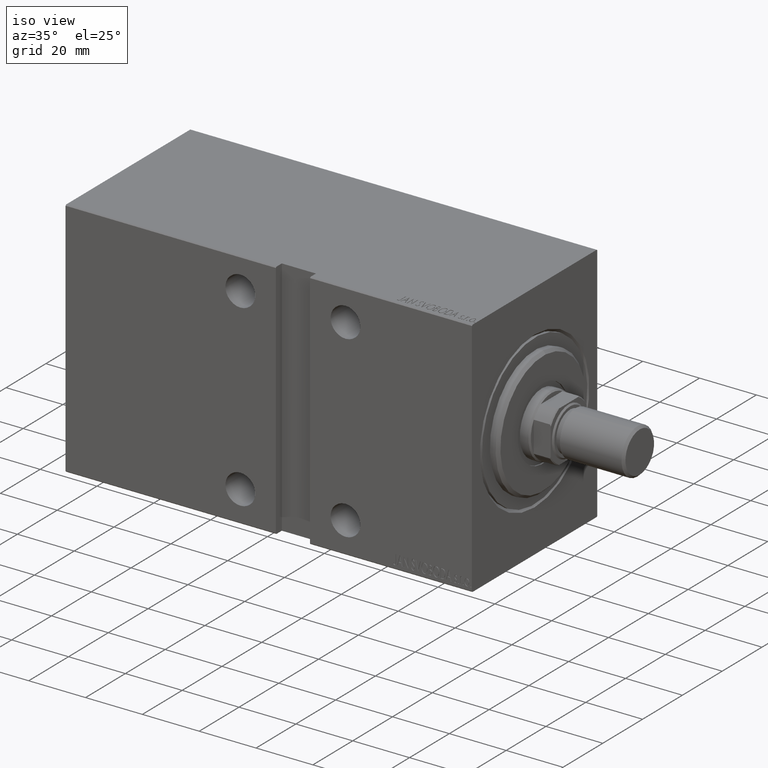
[diagram: clean part render]
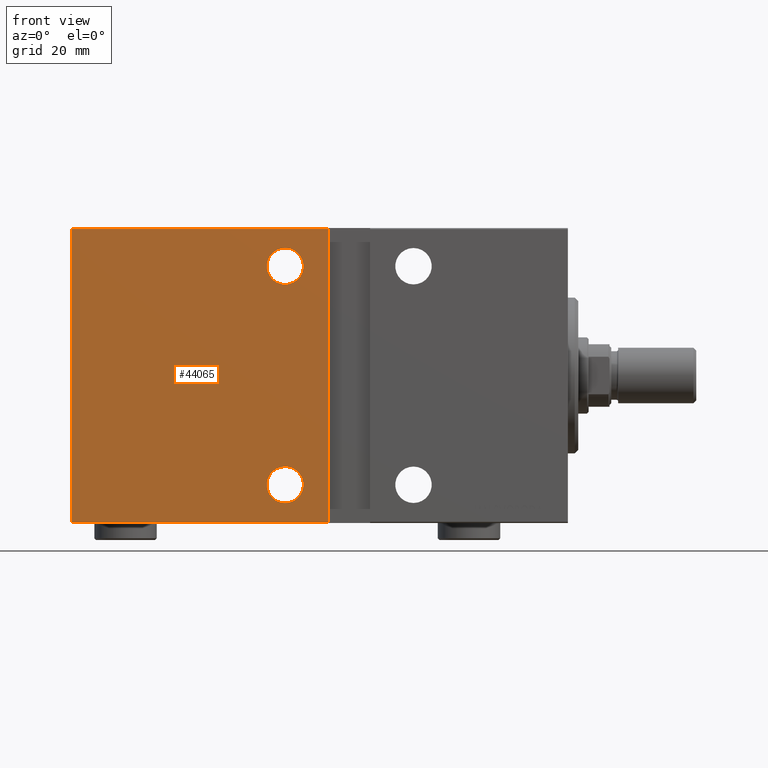
[diagram: tour spotlight — one face highlighted and labeled with its STEP entity id]
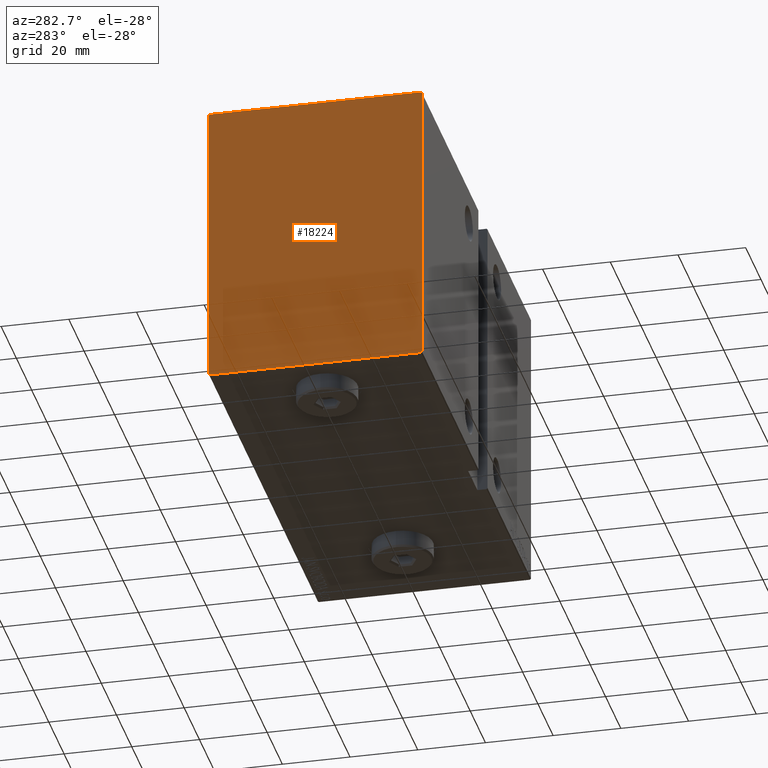
[diagram: tour spotlight — one face highlighted and labeled with its STEP entity id]
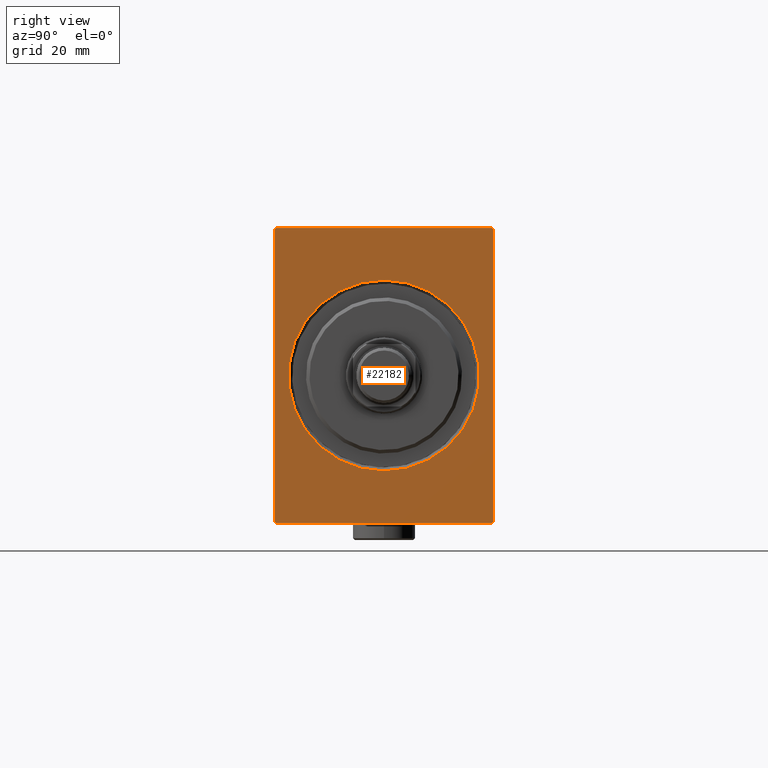
[diagram: tour spotlight — one face highlighted and labeled with its STEP entity id]
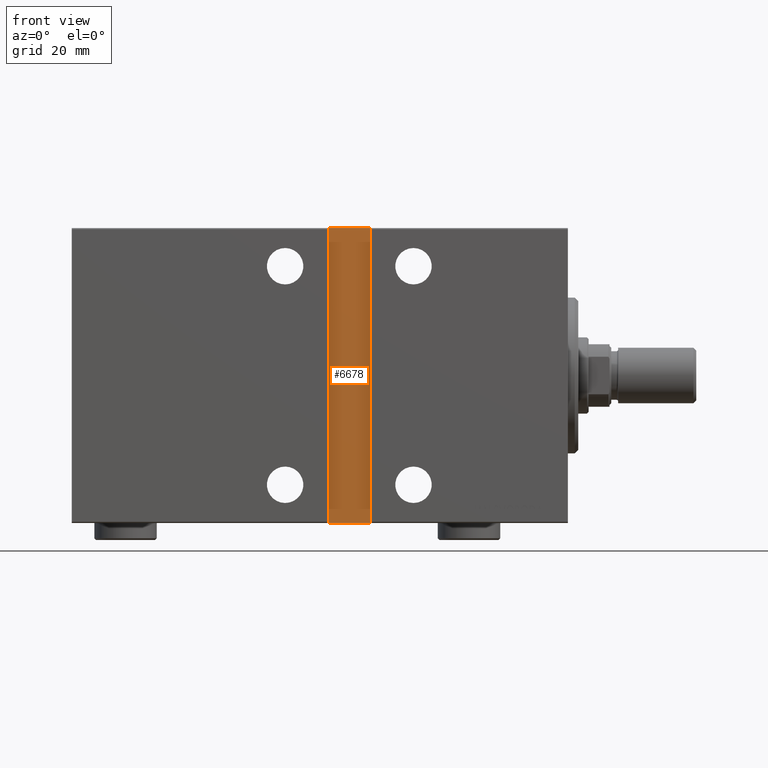
[diagram: tour spotlight — one face highlighted and labeled with its STEP entity id]
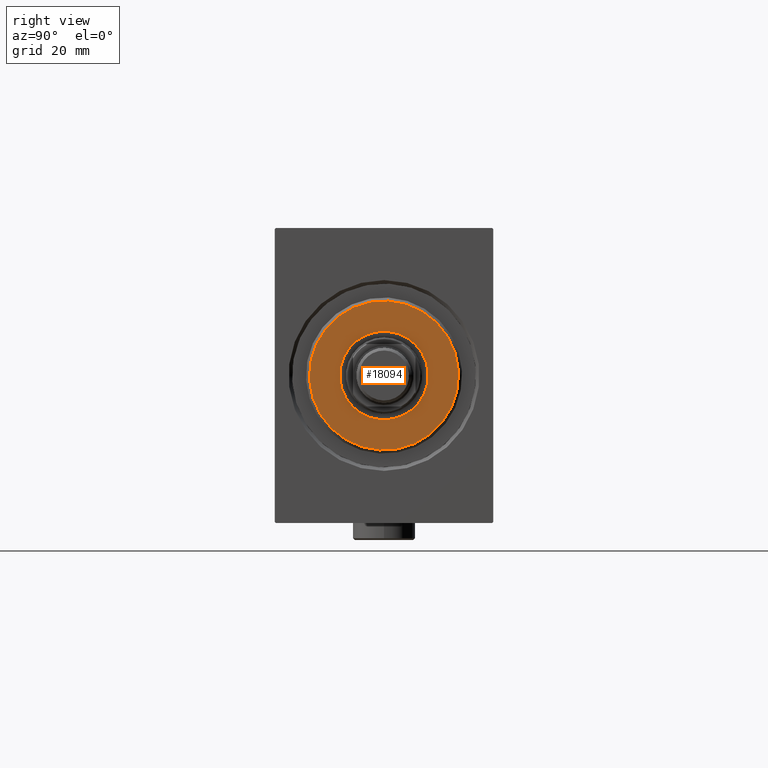
[diagram: tour spotlight — one face highlighted and labeled with its STEP entity id]
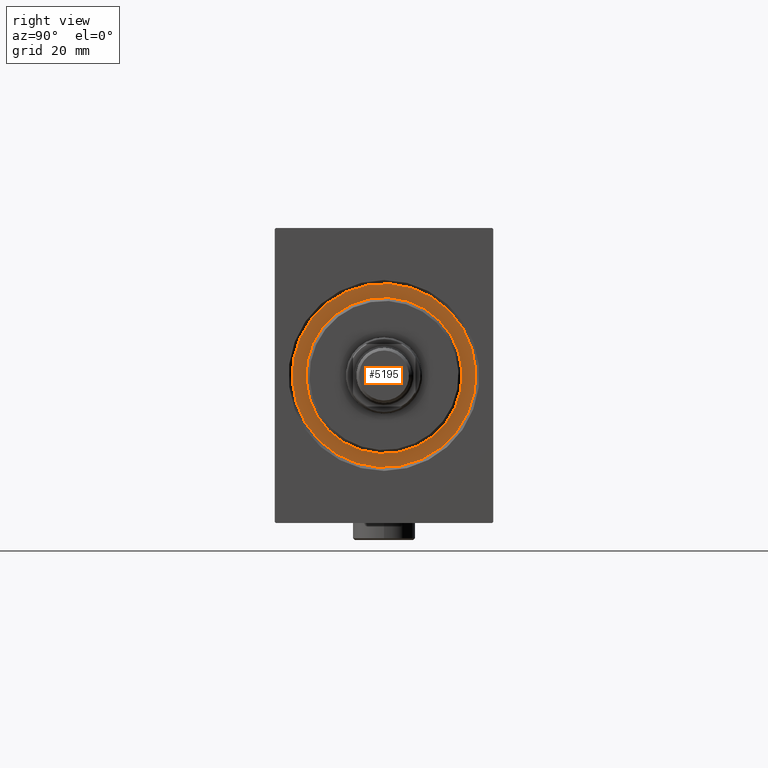
[diagram: tour spotlight — one face highlighted and labeled with its STEP entity id]
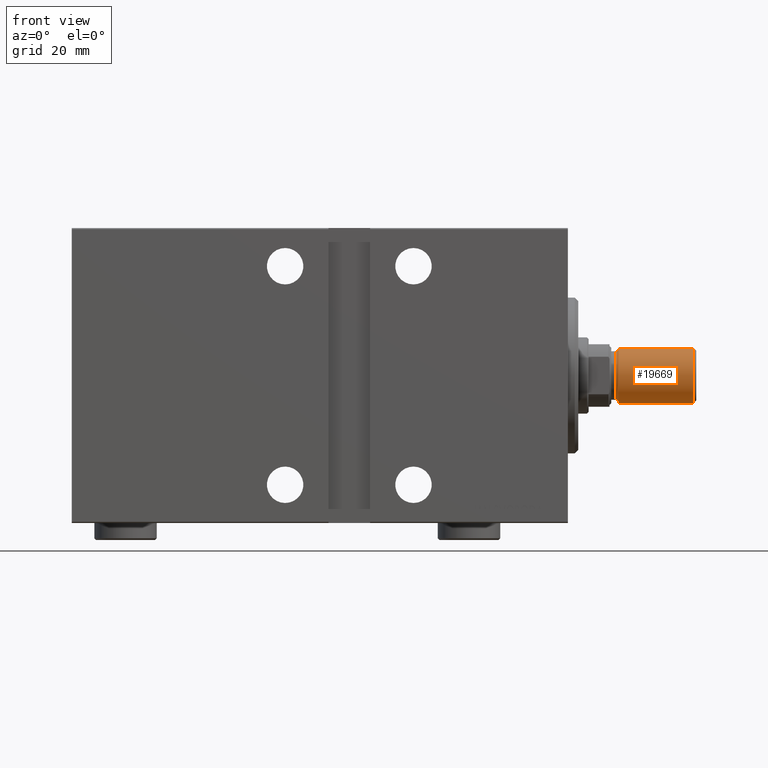
[diagram: tour spotlight — one face highlighted and labeled with its STEP entity id]
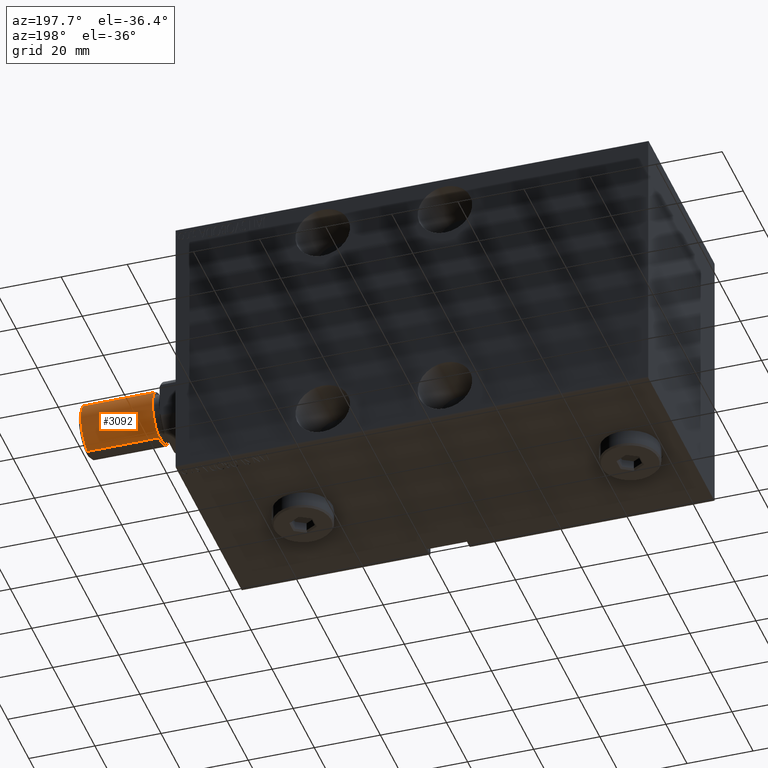
[diagram: tour spotlight — one face highlighted and labeled with its STEP entity id]
A machine part: a face-by-face anatomy tour. The part has 913 B-rep faces; the first image is the clean iso view, then the 8 largest visible faces are spotlighted one at a time (largest first), each with its STEP entity span.

Face 1 — front view, entity #44065. In plain terms, the highlighted planar face has unit normal (-0, 1, -0).
Definition (entity closure, byte-faithful):
#796 = CARTESIAN_POINT ( 'NONE',  ( 143.0000000000000000, 31.50000000000000711, -42.50000000000000711 ) ) ;
#1644 = ORIENTED_EDGE ( 'NONE', *, *, #41748, .F. ) ;
#1740 = EDGE_CURVE ( 'NONE', #21860, #10266, #3109, .T. ) ;
#1922 = CARTESIAN_POINT ( 'NONE',  ( 143.0000000000000000, 31.50000000000000000, 42.20000000000004547 ) ) ;
#2389 = FACE_BOUND ( 'NONE', #37384, .T. ) ;
#3020 = LINE ( 'NONE', #43814, #27795 ) ;
#3109 = CIRCLE ( 'NONE', #14557, 5.250000000000004441 ) ;
#4425 = ORIENTED_EDGE ( 'NONE', *, *, #7078, .T. ) ;
#4496 = DIRECTION ( 'NONE',  ( 0.000000000000000000, 1.000000000000000000, 0.000000000000000000 ) ) ;
#4830 = ORIENTED_EDGE ( 'NONE', *, *, #42965, .F. ) ;
#6901 = EDGE_LOOP ( 'NONE', ( #27109, #39203, #4830, #4425 ) ) ;
#6988 = CARTESIAN_POINT ( 'NONE',  ( 81.49999999999998579, 31.50000000000002132, 26.24999999999998224 ) ) ;
#7078 = EDGE_CURVE ( 'NONE', #41312, #42017, #7780, .T. ) ;
#7780 = LINE ( 'NONE', #30666, #33851 ) ;
#9322 = VERTEX_POINT ( 'NONE', #6988 ) ;
#9768 = DIRECTION ( 'NONE',  ( 0.000000000000000000, 8.163404592832031500E-17, -1.000000000000000000 ) ) ;
#10266 = VERTEX_POINT ( 'NONE', #29512 ) ;
#11217 = LINE ( 'NONE', #40637, #13502 ) ;
#11219 = ORIENTED_EDGE ( 'NONE', *, *, #25376, .F. ) ;
#11749 = VERTEX_POINT ( 'NONE', #44000 ) ;
#11971 = CARTESIAN_POINT ( 'NONE',  ( 81.49999999999998579, 31.50000000000002132, 36.74999999999999289 ) ) ;
#12896 = DIRECTION ( 'NONE',  ( 0.000000000000000000, 1.000000000000000000, 0.000000000000000000 ) ) ;
#13107 = DIRECTION ( 'NONE',  ( -1.632680918566406300E-16, 0.000000000000000000, -1.000000000000000000 ) ) ;
#13354 = FACE_OUTER_BOUND ( 'NONE', #6901, .T. ) ;
#13502 = VECTOR ( 'NONE', #24078, 1000.000000000000000 ) ;
#13956 = CARTESIAN_POINT ( 'NONE',  ( 81.49999999999998579, 31.50000000000002132, -26.25000000000001066 ) ) ;
#14557 = AXIS2_PLACEMENT_3D ( 'NONE', #28313, #38598, #24955 ) ;
#16937 = CARTESIAN_POINT ( 'NONE',  ( 143.0000000000000000, 31.50000000000000711, -42.50000000000000711 ) ) ;
#17548 = VERTEX_POINT ( 'NONE', #32523 ) ;
#17957 = CARTESIAN_POINT ( 'NONE',  ( 69.00000000000001421, 31.50000000000000000, 42.20000000000004547 ) ) ;
#18504 = CIRCLE ( 'NONE', #39948, 5.250000000000004441 ) ;
#18967 = DIRECTION ( 'NONE',  ( 0.000000000000000000, 0.000000000000000000, 1.000000000000000000 ) ) ;
#20696 = ORIENTED_EDGE ( 'NONE', *, *, #21049, .F. ) ;
#21049 = EDGE_CURVE ( 'NONE', #10266, #21860, #18504, .T. ) ;
#21053 = EDGE_CURVE ( 'NONE', #11749, #17548, #11217, .T. ) ;
#21860 = VERTEX_POINT ( 'NONE', #13956 ) ;
#22074 = AXIS2_PLACEMENT_3D ( 'NONE', #30850, #34209, #24359 ) ;
#24078 = DIRECTION ( 'NONE',  ( -1.000000000000000000, 0.000000000000000000, 0.000000000000000000 ) ) ;
#24350 = DIRECTION ( 'NONE',  ( 0.000000000000000000, -8.163404592832031500E-17, 1.000000000000000000 ) ) ;
#24359 = DIRECTION ( 'NONE',  ( 0.000000000000000000, 0.000000000000000000, 1.000000000000000000 ) ) ;
#24955 = DIRECTION ( 'NONE',  ( 0.000000000000000000, 0.000000000000000000, 1.000000000000000000 ) ) ;
#25376 = EDGE_CURVE ( 'NONE', #9322, #33835, #39977, .T. ) ;
#26147 = CARTESIAN_POINT ( 'NONE',  ( 81.49999999999998579, 31.50000000000002132, 31.49999999999998579 ) ) ;
#26597 = PLANE ( 'NONE',  #39868 ) ;
#26660 = EDGE_LOOP ( 'NONE', ( #31688, #20696 ) ) ;
#27035 = DIRECTION ( 'NONE',  ( 0.000000000000000000, -1.000000000000000000, -8.163404592832031500E-17 ) ) ;
#27109 = ORIENTED_EDGE ( 'NONE', *, *, #36968, .F. ) ;
#27795 = VECTOR ( 'NONE', #13107, 1000.000000000000000 ) ;
#27933 = LINE ( 'NONE', #796, #31595 ) ;
#28313 = CARTESIAN_POINT ( 'NONE',  ( 81.49999999999998579, 31.50000000000002132, -31.50000000000001421 ) ) ;
#29512 = CARTESIAN_POINT ( 'NONE',  ( 81.49999999999998579, 31.50000000000002132, -36.75000000000002132 ) ) ;
#30666 = CARTESIAN_POINT ( 'NONE',  ( 143.0000000000000000, 31.50000000000000000, 42.20000000000004547 ) ) ;
#30791 = DIRECTION ( 'NONE',  ( 0.000000000000000000, 0.000000000000000000, 1.000000000000000000 ) ) ;
#30850 = CARTESIAN_POINT ( 'NONE',  ( 81.49999999999998579, 31.50000000000002132, 31.49999999999998579 ) ) ;
#31595 = VECTOR ( 'NONE', #24350, 1000.000000000000000 ) ;
#31688 = ORIENTED_EDGE ( 'NONE', *, *, #1740, .F. ) ;
#32523 = CARTESIAN_POINT ( 'NONE',  ( 69.00000000000000000, 31.50000000000000000, -42.20000000000004547 ) ) ;
#33315 = FACE_BOUND ( 'NONE', #26660, .T. ) ;
#33835 = VERTEX_POINT ( 'NONE', #11971 ) ;
#33851 = VECTOR ( 'NONE', #44332, 1000.000000000000000 ) ;
#34209 = DIRECTION ( 'NONE',  ( 0.000000000000000000, 1.000000000000000000, 0.000000000000000000 ) ) ;
#34992 = AXIS2_PLACEMENT_3D ( 'NONE', #26147, #12896, #18967 ) ;
#36968 = EDGE_CURVE ( 'NONE', #11749, #42017, #27933, .T. ) ;
#37384 = EDGE_LOOP ( 'NONE', ( #1644, #11219 ) ) ;
#38598 = DIRECTION ( 'NONE',  ( 0.000000000000000000, 1.000000000000000000, 0.000000000000000000 ) ) ;
#39203 = ORIENTED_EDGE ( 'NONE', *, *, #21053, .T. ) ;
#39868 = AXIS2_PLACEMENT_3D ( 'NONE', #16937, #27035, #9768 ) ;
#39948 = AXIS2_PLACEMENT_3D ( 'NONE', #41089, #4496, #30791 ) ;
#39977 = CIRCLE ( 'NONE', #34992, 5.250000000000004441 ) ;
#40637 = CARTESIAN_POINT ( 'NONE',  ( 143.0000000000000000, 31.50000000000000711, -42.20000000000004547 ) ) ;
#41089 = CARTESIAN_POINT ( 'NONE',  ( 81.49999999999998579, 31.50000000000002132, -31.50000000000001421 ) ) ;
#41312 = VERTEX_POINT ( 'NONE', #17957 ) ;
#41377 = CIRCLE ( 'NONE', #22074, 5.250000000000004441 ) ;
#41748 = EDGE_CURVE ( 'NONE', #33835, #9322, #41377, .T. ) ;
#42017 = VERTEX_POINT ( 'NONE', #1922 ) ;
#42965 = EDGE_CURVE ( 'NONE', #41312, #17548, #3020, .T. ) ;
#43814 = CARTESIAN_POINT ( 'NONE',  ( 69.00000000000001421, 31.50000000000000000, 42.50000000000000711 ) ) ;
#44000 = CARTESIAN_POINT ( 'NONE',  ( 143.0000000000000000, 31.50000000000000711, -42.20000000000004547 ) ) ;
#44065 = ADVANCED_FACE ( 'NONE', ( #33315, #2389, #13354 ), #26597, .F. ) ;
#44332 = DIRECTION ( 'NONE',  ( 1.000000000000000000, 0.000000000000000000, 0.000000000000000000 ) ) ;

Face 2 — auxiliary view, entity #18224. In plain terms, the highlighted planar face has unit normal (-1, -0, 0).
Definition (entity closure, byte-faithful):
#47 = DIRECTION ( 'NONE',  ( -0.000000000000000000, 0.7071067811865474617, 0.7071067811865474617 ) ) ;
#796 = CARTESIAN_POINT ( 'NONE',  ( 143.0000000000000000, 31.50000000000000711, -42.50000000000000711 ) ) ;
#1539 = EDGE_CURVE ( 'NONE', #4230, #5914, #16228, .T. ) ;
#1547 = DIRECTION ( 'NONE',  ( -0.000000000000000000, 0.7071067811865802133, -0.7071067811865149322 ) ) ;
#1922 = CARTESIAN_POINT ( 'NONE',  ( 143.0000000000000000, 31.50000000000000000, 42.20000000000004547 ) ) ;
#2583 = PLANE ( 'NONE',  #3387 ) ;
#3186 = CARTESIAN_POINT ( 'NONE',  ( 143.0000000000000000, 36.85000000000002274, -36.85000000000002274 ) ) ;
#3234 = VECTOR ( 'NONE', #13108, 1000.000000000000000 ) ;
#3387 = AXIS2_PLACEMENT_3D ( 'NONE', #9313, #37071, #26577 ) ;
#3515 = DIRECTION ( 'NONE',  ( 0.000000000000000000, 1.000000000000000000, 0.000000000000000000 ) ) ;
#3990 = ORIENTED_EDGE ( 'NONE', *, *, #1539, .T. ) ;
#4230 = VERTEX_POINT ( 'NONE', #23606 ) ;
#5550 = VERTEX_POINT ( 'NONE', #32381 ) ;
#5725 = EDGE_CURVE ( 'NONE', #18124, #4230, #6592, .T. ) ;
#5914 = VERTEX_POINT ( 'NONE', #20672 ) ;
#6592 = LINE ( 'NONE', #14595, #3234 ) ;
#6863 = CARTESIAN_POINT ( 'NONE',  ( 143.0000000000000000, 31.20000000000003482, 42.50000000000000711 ) ) ;
#7596 = CARTESIAN_POINT ( 'NONE',  ( 143.0000000000000000, -36.84999999999855902, -36.85000000000196962 ) ) ;
#7821 = LINE ( 'NONE', #7596, #43506 ) ;
#8210 = LINE ( 'NONE', #21895, #26349 ) ;
#8897 = EDGE_LOOP ( 'NONE', ( #20826, #15591, #31796, #21702, #29429, #18616, #3990, #10219 ) ) ;
#9313 = CARTESIAN_POINT ( 'NONE',  ( 143.0000000000000000, 0.000000000000000000, 0.000000000000000000 ) ) ;
#10219 = ORIENTED_EDGE ( 'NONE', *, *, #23289, .T. ) ;
#10442 = CARTESIAN_POINT ( 'NONE',  ( 143.0000000000000000, -31.49999999999999289, -42.50000000000000711 ) ) ;
#11749 = VERTEX_POINT ( 'NONE', #44000 ) ;
#13108 = DIRECTION ( 'NONE',  ( 0.000000000000000000, -0.7071067811865066055, -0.7071067811865884289 ) ) ;
#13473 = VECTOR ( 'NONE', #27317, 1000.000000000000114 ) ;
#13544 = VERTEX_POINT ( 'NONE', #43590 ) ;
#14071 = LINE ( 'NONE', #24173, #13473 ) ;
#14595 = CARTESIAN_POINT ( 'NONE',  ( 143.0000000000000000, -36.85000000000182752, 36.84999999999756426 ) ) ;
#15591 = ORIENTED_EDGE ( 'NONE', *, *, #43194, .T. ) ;
#16228 = LINE ( 'NONE', #39756, #42496 ) ;
#17141 = VERTEX_POINT ( 'NONE', #6863 ) ;
#18124 = VERTEX_POINT ( 'NONE', #28616 ) ;
#18224 = ADVANCED_FACE ( 'NONE', ( #23430 ), #2583, .T. ) ;
#18536 = DIRECTION ( 'NONE',  ( 0.000000000000000000, -1.000000000000000000, 0.000000000000000000 ) ) ;
#18616 = ORIENTED_EDGE ( 'NONE', *, *, #5725, .T. ) ;
#19544 = EDGE_CURVE ( 'NONE', #42017, #17141, #14071, .T. ) ;
#20672 = CARTESIAN_POINT ( 'NONE',  ( 143.0000000000000000, -31.49999999999999289, -42.20000000000004547 ) ) ;
#20826 = ORIENTED_EDGE ( 'NONE', *, *, #41774, .T. ) ;
#21702 = ORIENTED_EDGE ( 'NONE', *, *, #19544, .T. ) ;
#21895 = CARTESIAN_POINT ( 'NONE',  ( 143.0000000000000000, 31.50000000000000000, 42.50000000000000711 ) ) ;
#22719 = VECTOR ( 'NONE', #47, 1000.000000000000114 ) ;
#23289 = EDGE_CURVE ( 'NONE', #5914, #13544, #7821, .T. ) ;
#23430 = FACE_OUTER_BOUND ( 'NONE', #8897, .T. ) ;
#23483 = VECTOR ( 'NONE', #3515, 1000.000000000000000 ) ;
#23606 = CARTESIAN_POINT ( 'NONE',  ( 143.0000000000000000, -31.49999999999999289, 42.20000000000001705 ) ) ;
#23733 = EDGE_CURVE ( 'NONE', #17141, #18124, #8210, .T. ) ;
#24173 = CARTESIAN_POINT ( 'NONE',  ( 143.0000000000000000, 36.85000000000001563, 36.85000000000001563 ) ) ;
#24350 = DIRECTION ( 'NONE',  ( 0.000000000000000000, -8.163404592832031500E-17, 1.000000000000000000 ) ) ;
#26349 = VECTOR ( 'NONE', #18536, 1000.000000000000000 ) ;
#26577 = DIRECTION ( 'NONE',  ( 0.000000000000000000, 0.000000000000000000, -1.000000000000000000 ) ) ;
#27317 = DIRECTION ( 'NONE',  ( -0.000000000000000000, -0.7071067811865474617, 0.7071067811865474617 ) ) ;
#27933 = LINE ( 'NONE', #796, #31595 ) ;
#28616 = CARTESIAN_POINT ( 'NONE',  ( 143.0000000000000000, -31.20000000000003482, 42.50000000000000711 ) ) ;
#29429 = ORIENTED_EDGE ( 'NONE', *, *, #23733, .T. ) ;
#31595 = VECTOR ( 'NONE', #24350, 1000.000000000000000 ) ;
#31796 = ORIENTED_EDGE ( 'NONE', *, *, #36968, .T. ) ;
#32381 = CARTESIAN_POINT ( 'NONE',  ( 143.0000000000000000, 31.20000000000004192, -42.50000000000000711 ) ) ;
#32834 = DIRECTION ( 'NONE',  ( 0.000000000000000000, 0.000000000000000000, -1.000000000000000000 ) ) ;
#34431 = LINE ( 'NONE', #10442, #23483 ) ;
#36968 = EDGE_CURVE ( 'NONE', #11749, #42017, #27933, .T. ) ;
#37071 = DIRECTION ( 'NONE',  ( 1.000000000000000000, 0.000000000000000000, 0.000000000000000000 ) ) ;
#39756 = CARTESIAN_POINT ( 'NONE',  ( 143.0000000000000000, -31.49999999999999289, 42.50000000000000711 ) ) ;
#41774 = EDGE_CURVE ( 'NONE', #13544, #5550, #34431, .T. ) ;
#42017 = VERTEX_POINT ( 'NONE', #1922 ) ;
#42496 = VECTOR ( 'NONE', #32834, 1000.000000000000000 ) ;
#43194 = EDGE_CURVE ( 'NONE', #5550, #11749, #43758, .T. ) ;
#43506 = VECTOR ( 'NONE', #1547, 999.9999999999998863 ) ;
#43590 = CARTESIAN_POINT ( 'NONE',  ( 143.0000000000000000, -31.19999999999999929, -42.50000000000000711 ) ) ;
#43758 = LINE ( 'NONE', #3186, #22719 ) ;
#44000 = CARTESIAN_POINT ( 'NONE',  ( 143.0000000000000000, 31.50000000000000711, -42.20000000000004547 ) ) ;

Face 3 — right view, entity #22182. In plain terms, the highlighted planar face has unit normal (-1, -0, 0).
Definition (entity closure, byte-faithful):
#157 = LINE ( 'NONE', #37787, #36309 ) ;
#322 = DIRECTION ( 'NONE',  ( 1.000000000000000000, 0.000000000000000000, 0.000000000000000000 ) ) ;
#637 = AXIS2_PLACEMENT_3D ( 'NONE', #3685, #322, #7040 ) ;
#740 = ORIENTED_EDGE ( 'NONE', *, *, #27408, .T. ) ;
#1130 = DIRECTION ( 'NONE',  ( -0.000000000000000000, -0.7071067811865802133, 0.7071067811865149322 ) ) ;
#1934 = EDGE_CURVE ( 'NONE', #42533, #32780, #35411, .T. ) ;
#3502 = LINE ( 'NONE', #20523, #6100 ) ;
#3685 = CARTESIAN_POINT ( 'NONE',  ( 0.000000000000000000, 0.000000000000000000, 0.000000000000000000 ) ) ;
#4493 = CARTESIAN_POINT ( 'NONE',  ( 0.000000000000000000, -31.19999999999999929, -42.50000000000000711 ) ) ;
#4806 = EDGE_CURVE ( 'NONE', #12014, #15877, #14887, .T. ) ;
#5229 = EDGE_CURVE ( 'NONE', #13359, #23847, #37540, .T. ) ;
#6100 = VECTOR ( 'NONE', #27270, 1000.000000000000000 ) ;
#6368 = ORIENTED_EDGE ( 'NONE', *, *, #4806, .F. ) ;
#7040 = DIRECTION ( 'NONE',  ( 0.000000000000000000, 0.000000000000000000, -1.000000000000000000 ) ) ;
#7211 = EDGE_CURVE ( 'NONE', #10547, #35244, #29517, .T. ) ;
#7289 = DIRECTION ( 'NONE',  ( -0.000000000000000000, 0.7071067811865066055, 0.7071067811865884289 ) ) ;
#8092 = EDGE_CURVE ( 'NONE', #24355, #35244, #27696, .T. ) ;
#9686 = DIRECTION ( 'NONE',  ( 1.000000000000000000, 0.000000000000000000, 0.000000000000000000 ) ) ;
#10406 = CARTESIAN_POINT ( 'NONE',  ( 0.000000000000000000, 3.367778697655224463E-15, -27.50000000000002487 ) ) ;
#10547 = VERTEX_POINT ( 'NONE', #38303 ) ;
#11196 = DIRECTION ( 'NONE',  ( 0.000000000000000000, 0.000000000000000000, -1.000000000000000000 ) ) ;
#12014 = VERTEX_POINT ( 'NONE', #18563 ) ;
#12282 = EDGE_CURVE ( 'NONE', #24355, #32780, #3502, .T. ) ;
#13359 = VERTEX_POINT ( 'NONE', #38274 ) ;
#13586 = CARTESIAN_POINT ( 'NONE',  ( 0.000000000000000000, -31.49999999999999289, 42.20000000000001705 ) ) ;
#13935 = DIRECTION ( 'NONE',  ( 0.000000000000000000, 0.000000000000000000, -1.000000000000000000 ) ) ;
#14887 = LINE ( 'NONE', #35276, #16811 ) ;
#15507 = DIRECTION ( 'NONE',  ( -0.000000000000000000, 0.7071067811865474617, -0.7071067811865474617 ) ) ;
#15744 = VERTEX_POINT ( 'NONE', #44132 ) ;
#15877 = VERTEX_POINT ( 'NONE', #22606 ) ;
#16418 = FACE_BOUND ( 'NONE', #38618, .T. ) ;
#16500 = CARTESIAN_POINT ( 'NONE',  ( 0.000000000000000000, -31.49999999999999289, -42.20000000000004547 ) ) ;
#16811 = VECTOR ( 'NONE', #31925, 1000.000000000000000 ) ;
#17134 = EDGE_LOOP ( 'NONE', ( #41101, #21138, #6368, #740, #39261, #23837, #21237, #28319 ) ) ;
#17197 = DIRECTION ( 'NONE',  ( 0.000000000000000000, 1.000000000000000000, 0.000000000000000000 ) ) ;
#18045 = EDGE_CURVE ( 'NONE', #42533, #15744, #157, .T. ) ;
#18563 = CARTESIAN_POINT ( 'NONE',  ( 0.000000000000000000, 31.50000000000000711, -42.20000000000004547 ) ) ;
#20246 = VECTOR ( 'NONE', #43395, 1000.000000000000000 ) ;
#20523 = CARTESIAN_POINT ( 'NONE',  ( 0.000000000000000000, -31.49999999999999289, 42.50000000000000711 ) ) ;
#21138 = ORIENTED_EDGE ( 'NONE', *, *, #31897, .T. ) ;
#21237 = ORIENTED_EDGE ( 'NONE', *, *, #12282, .F. ) ;
#21514 = CARTESIAN_POINT ( 'NONE',  ( 0.000000000000000000, 0.000000000000000000, 0.000000000000000000 ) ) ;
#21735 = DIRECTION ( 'NONE',  ( 1.000000000000000000, 0.000000000000000000, 0.000000000000000000 ) ) ;
#22123 = CIRCLE ( 'NONE', #637, 27.50000000000002487 ) ;
#22182 = ADVANCED_FACE ( 'NONE', ( #16418, #36579 ), #33234, .F. ) ;
#22606 = CARTESIAN_POINT ( 'NONE',  ( 0.000000000000000000, 31.50000000000000000, 42.20000000000004547 ) ) ;
#23837 = ORIENTED_EDGE ( 'NONE', *, *, #1934, .T. ) ;
#23847 = VERTEX_POINT ( 'NONE', #10406 ) ;
#23986 = AXIS2_PLACEMENT_3D ( 'NONE', #21514, #21735, #11196 ) ;
#24355 = VERTEX_POINT ( 'NONE', #35664 ) ;
#25335 = LINE ( 'NONE', #42350, #42909 ) ;
#25379 = CARTESIAN_POINT ( 'NONE',  ( 0.000000000000000000, 31.20000000000003482, 42.50000000000000711 ) ) ;
#25444 = EDGE_CURVE ( 'NONE', #23847, #13359, #22123, .T. ) ;
#26075 = VECTOR ( 'NONE', #7289, 1000.000000000000000 ) ;
#26197 = CARTESIAN_POINT ( 'NONE',  ( 0.000000000000000000, -31.19999999999999929, -42.50000000000000711 ) ) ;
#27270 = DIRECTION ( 'NONE',  ( 0.000000000000000000, 0.000000000000000000, -1.000000000000000000 ) ) ;
#27408 = EDGE_CURVE ( 'NONE', #12014, #15744, #25335, .T. ) ;
#27696 = LINE ( 'NONE', #13586, #26075 ) ;
#28319 = ORIENTED_EDGE ( 'NONE', *, *, #8092, .T. ) ;
#29517 = LINE ( 'NONE', #36448, #20246 ) ;
#31897 = EDGE_CURVE ( 'NONE', #10547, #15877, #38355, .T. ) ;
#31925 = DIRECTION ( 'NONE',  ( 0.000000000000000000, -8.163404592832031500E-17, 1.000000000000000000 ) ) ;
#32780 = VERTEX_POINT ( 'NONE', #16500 ) ;
#33234 = PLANE ( 'NONE',  #34158 ) ;
#33913 = VECTOR ( 'NONE', #1130, 999.9999999999998863 ) ;
#34158 = AXIS2_PLACEMENT_3D ( 'NONE', #36794, #9686, #13935 ) ;
#35244 = VERTEX_POINT ( 'NONE', #38413 ) ;
#35276 = CARTESIAN_POINT ( 'NONE',  ( 0.000000000000000000, 31.50000000000000711, -42.50000000000000711 ) ) ;
#35402 = ORIENTED_EDGE ( 'NONE', *, *, #25444, .T. ) ;
#35411 = LINE ( 'NONE', #4493, #33913 ) ;
#35622 = DIRECTION ( 'NONE',  ( 0.000000000000000000, -0.7071067811865474617, -0.7071067811865474617 ) ) ;
#35664 = CARTESIAN_POINT ( 'NONE',  ( 0.000000000000000000, -31.49999999999999289, 42.20000000000001705 ) ) ;
#36309 = VECTOR ( 'NONE', #17197, 1000.000000000000000 ) ;
#36448 = CARTESIAN_POINT ( 'NONE',  ( 0.000000000000000000, 31.50000000000000000, 42.50000000000000711 ) ) ;
#36579 = FACE_OUTER_BOUND ( 'NONE', #17134, .T. ) ;
#36794 = CARTESIAN_POINT ( 'NONE',  ( 0.000000000000000000, 0.000000000000000000, 0.000000000000000000 ) ) ;
#37540 = CIRCLE ( 'NONE', #23986, 27.50000000000002487 ) ;
#37787 = CARTESIAN_POINT ( 'NONE',  ( 0.000000000000000000, -31.49999999999999289, -42.50000000000000711 ) ) ;
#38274 = CARTESIAN_POINT ( 'NONE',  ( 0.000000000000000000, 0.000000000000000000, 27.50000000000002487 ) ) ;
#38303 = CARTESIAN_POINT ( 'NONE',  ( 0.000000000000000000, 31.20000000000003482, 42.50000000000000711 ) ) ;
#38355 = LINE ( 'NONE', #25379, #40129 ) ;
#38413 = CARTESIAN_POINT ( 'NONE',  ( 0.000000000000000000, -31.20000000000003482, 42.50000000000000711 ) ) ;
#38618 = EDGE_LOOP ( 'NONE', ( #41917, #35402 ) ) ;
#39261 = ORIENTED_EDGE ( 'NONE', *, *, #18045, .F. ) ;
#40129 = VECTOR ( 'NONE', #15507, 1000.000000000000114 ) ;
#41101 = ORIENTED_EDGE ( 'NONE', *, *, #7211, .F. ) ;
#41917 = ORIENTED_EDGE ( 'NONE', *, *, #5229, .T. ) ;
#42350 = CARTESIAN_POINT ( 'NONE',  ( 0.000000000000000000, 31.50000000000000711, -42.20000000000004547 ) ) ;
#42533 = VERTEX_POINT ( 'NONE', #26197 ) ;
#42909 = VECTOR ( 'NONE', #35622, 1000.000000000000114 ) ;
#43395 = DIRECTION ( 'NONE',  ( 0.000000000000000000, -1.000000000000000000, 0.000000000000000000 ) ) ;
#44132 = CARTESIAN_POINT ( 'NONE',  ( 0.000000000000000000, 31.20000000000004192, -42.50000000000000711 ) ) ;

Face 4 — front view, entity #6678. In plain terms, the highlighted planar face has unit normal (0, -1, -0).
Definition (entity closure, byte-faithful):
#278 = LINE ( 'NONE', #27199, #12529 ) ;
#3251 = CARTESIAN_POINT ( 'NONE',  ( 56.99999999999999289, 28.50000000000000000, -42.50000000000000711 ) ) ;
#3863 = DIRECTION ( 'NONE',  ( 0.000000000000000000, -0.000000000000000000, 1.000000000000000000 ) ) ;
#4376 = DIRECTION ( 'NONE',  ( -1.632680918566406300E-16, 0.000000000000000000, -1.000000000000000000 ) ) ;
#4967 = EDGE_CURVE ( 'NONE', #24793, #19765, #278, .T. ) ;
#6102 = AXIS2_PLACEMENT_3D ( 'NONE', #13955, #41062, #3863 ) ;
#6678 = ADVANCED_FACE ( 'NONE', ( #31204 ), #30984, .T. ) ;
#8402 = ORIENTED_EDGE ( 'NONE', *, *, #4967, .T. ) ;
#10655 = LINE ( 'NONE', #41797, #40046 ) ;
#12529 = VECTOR ( 'NONE', #13289, 1000.000000000000000 ) ;
#13289 = DIRECTION ( 'NONE',  ( 1.000000000000000000, 0.000000000000000000, 0.000000000000000000 ) ) ;
#13955 = CARTESIAN_POINT ( 'NONE',  ( 0.000000000000000000, 28.50000000000000000, 0.000000000000000000 ) ) ;
#16226 = VERTEX_POINT ( 'NONE', #38661 ) ;
#16504 = VECTOR ( 'NONE', #44039, 1000.000000000000000 ) ;
#16706 = LINE ( 'NONE', #43607, #16504 ) ;
#17154 = DIRECTION ( 'NONE',  ( 1.000000000000000000, 0.000000000000000000, 0.000000000000000000 ) ) ;
#19352 = CARTESIAN_POINT ( 'NONE',  ( 57.00000000000000000, 28.50000000000000000, 42.50000000000000711 ) ) ;
#19765 = VERTEX_POINT ( 'NONE', #43569 ) ;
#22259 = ORIENTED_EDGE ( 'NONE', *, *, #30703, .F. ) ;
#22383 = VERTEX_POINT ( 'NONE', #23323 ) ;
#23323 = CARTESIAN_POINT ( 'NONE',  ( 69.00000000000001421, 28.50000000000000355, -42.50000000000000711 ) ) ;
#24793 = VERTEX_POINT ( 'NONE', #19352 ) ;
#27199 = CARTESIAN_POINT ( 'NONE',  ( 57.00000000000000000, 28.50000000000000000, 42.50000000000000711 ) ) ;
#27963 = VECTOR ( 'NONE', #17154, 1000.000000000000000 ) ;
#28106 = EDGE_CURVE ( 'NONE', #19765, #22383, #10655, .T. ) ;
#30156 = LINE ( 'NONE', #3251, #27963 ) ;
#30645 = EDGE_CURVE ( 'NONE', #24793, #16226, #16706, .T. ) ;
#30703 = EDGE_CURVE ( 'NONE', #16226, #22383, #30156, .T. ) ;
#30984 = PLANE ( 'NONE',  #6102 ) ;
#31204 = FACE_OUTER_BOUND ( 'NONE', #40104, .T. ) ;
#34274 = ORIENTED_EDGE ( 'NONE', *, *, #30645, .F. ) ;
#38661 = CARTESIAN_POINT ( 'NONE',  ( 56.99999999999999289, 28.50000000000000000, -42.50000000000000711 ) ) ;
#40046 = VECTOR ( 'NONE', #4376, 1000.000000000000000 ) ;
#40104 = EDGE_LOOP ( 'NONE', ( #22259, #34274, #8402, #43201 ) ) ;
#41062 = DIRECTION ( 'NONE',  ( -0.000000000000000000, 1.000000000000000000, 0.000000000000000000 ) ) ;
#41797 = CARTESIAN_POINT ( 'NONE',  ( 69.00000000000001421, 28.50000000000000000, 42.50000000000000711 ) ) ;
#43201 = ORIENTED_EDGE ( 'NONE', *, *, #28106, .T. ) ;
#43569 = CARTESIAN_POINT ( 'NONE',  ( 69.00000000000001421, 28.50000000000000000, 42.50000000000000711 ) ) ;
#43607 = CARTESIAN_POINT ( 'NONE',  ( 57.00000000000000000, 28.50000000000000000, 42.50000000000000711 ) ) ;
#44039 = DIRECTION ( 'NONE',  ( -8.163404592832031500E-17, 0.000000000000000000, -1.000000000000000000 ) ) ;

Face 5 — right view, entity #18094. In plain terms, the highlighted planar face has unit normal (1, -0, -0).
Definition (entity closure, byte-faithful):
#848 = CIRCLE ( 'NONE', #18756, 12.75000000000000000 ) ;
#2273 = DIRECTION ( 'NONE',  ( 0.000000000000000000, 0.000000000000000000, -1.000000000000000000 ) ) ;
#6198 = VERTEX_POINT ( 'NONE', #16548 ) ;
#6266 = AXIS2_PLACEMENT_3D ( 'NONE', #39560, #25031, #21890 ) ;
#9815 = DIRECTION ( 'NONE',  ( 1.000000000000000000, -0.000000000000000000, 0.000000000000000000 ) ) ;
#10533 = DIRECTION ( 'NONE',  ( 1.000000000000000000, 0.000000000000000000, 0.000000000000000000 ) ) ;
#10861 = EDGE_CURVE ( 'NONE', #43261, #14196, #41841, .T. ) ;
#14196 = VERTEX_POINT ( 'NONE', #32223 ) ;
#14818 = CARTESIAN_POINT ( 'NONE',  ( 3.000000000000000000, 0.000000000000000000, 21.50000000000001066 ) ) ;
#14930 = FACE_OUTER_BOUND ( 'NONE', #23225, .T. ) ;
#14971 = AXIS2_PLACEMENT_3D ( 'NONE', #19313, #32978, #2273 ) ;
#16548 = CARTESIAN_POINT ( 'NONE',  ( 3.000000000000000000, 2.694222958124177993E-15, -21.50000000000001066 ) ) ;
#18094 = ADVANCED_FACE ( 'NONE', ( #14930, #35318 ), #22118, .T. ) ;
#18756 = AXIS2_PLACEMENT_3D ( 'NONE', #31287, #31735, #28379 ) ;
#19313 = CARTESIAN_POINT ( 'NONE',  ( 3.000000000000000000, 0.000000000000000000, 0.000000000000000000 ) ) ;
#21890 = DIRECTION ( 'NONE',  ( 0.000000000000000000, 0.000000000000000000, -1.000000000000000000 ) ) ;
#22118 = PLANE ( 'NONE',  #6266 ) ;
#23048 = VERTEX_POINT ( 'NONE', #14818 ) ;
#23225 = EDGE_LOOP ( 'NONE', ( #25209, #25446 ) ) ;
#23399 = ORIENTED_EDGE ( 'NONE', *, *, #37944, .F. ) ;
#24131 = ORIENTED_EDGE ( 'NONE', *, *, #10861, .F. ) ;
#25031 = DIRECTION ( 'NONE',  ( 1.000000000000000000, -0.000000000000000000, 0.000000000000000000 ) ) ;
#25209 = ORIENTED_EDGE ( 'NONE', *, *, #26975, .T. ) ;
#25212 = CIRCLE ( 'NONE', #40190, 21.50000000000001066 ) ;
#25446 = ORIENTED_EDGE ( 'NONE', *, *, #34148, .T. ) ;
#26975 = EDGE_CURVE ( 'NONE', #23048, #6198, #35023, .T. ) ;
#28379 = DIRECTION ( 'NONE',  ( 0.000000000000000000, 0.000000000000000000, -1.000000000000000000 ) ) ;
#31287 = CARTESIAN_POINT ( 'NONE',  ( 3.000000000000000000, 0.000000000000000000, 0.000000000000000000 ) ) ;
#31735 = DIRECTION ( 'NONE',  ( 1.000000000000000000, 0.000000000000000000, 0.000000000000000000 ) ) ;
#32223 = CARTESIAN_POINT ( 'NONE',  ( 3.000000000000000000, 1.561424668912875111E-15, 12.75000000000000000 ) ) ;
#32978 = DIRECTION ( 'NONE',  ( 1.000000000000000000, -0.000000000000000000, 0.000000000000000000 ) ) ;
#33677 = CARTESIAN_POINT ( 'NONE',  ( 3.000000000000000000, 0.000000000000000000, -12.75000000000000000 ) ) ;
#34148 = EDGE_CURVE ( 'NONE', #6198, #23048, #25212, .T. ) ;
#35023 = CIRCLE ( 'NONE', #14971, 21.50000000000001066 ) ;
#35318 = FACE_BOUND ( 'NONE', #44225, .T. ) ;
#37360 = DIRECTION ( 'NONE',  ( 0.000000000000000000, 0.000000000000000000, -1.000000000000000000 ) ) ;
#37944 = EDGE_CURVE ( 'NONE', #14196, #43261, #848, .T. ) ;
#39560 = CARTESIAN_POINT ( 'NONE',  ( 3.000000000000000000, 0.000000000000000000, 0.000000000000000000 ) ) ;
#40190 = AXIS2_PLACEMENT_3D ( 'NONE', #40732, #9815, #37360 ) ;
#40732 = CARTESIAN_POINT ( 'NONE',  ( 3.000000000000000000, 0.000000000000000000, 0.000000000000000000 ) ) ;
#41682 = CARTESIAN_POINT ( 'NONE',  ( 3.000000000000000000, 0.000000000000000000, 0.000000000000000000 ) ) ;
#41841 = CIRCLE ( 'NONE', #43292, 12.75000000000000000 ) ;
#41901 = DIRECTION ( 'NONE',  ( 0.000000000000000000, 0.000000000000000000, -1.000000000000000000 ) ) ;
#43261 = VERTEX_POINT ( 'NONE', #33677 ) ;
#43292 = AXIS2_PLACEMENT_3D ( 'NONE', #41682, #10533, #41901 ) ;
#44225 = EDGE_LOOP ( 'NONE', ( #24131, #23399 ) ) ;

Face 6 — right view, entity #5195. In plain terms, the highlighted planar face has unit normal (-1, 0, 0).
Definition (entity closure, byte-faithful):
#1510 = EDGE_LOOP ( 'NONE', ( #39540, #43789 ) ) ;
#3416 = CIRCLE ( 'NONE', #25649, 22.50000000000000355 ) ;
#3569 = VERTEX_POINT ( 'NONE', #15669 ) ;
#3767 = ORIENTED_EDGE ( 'NONE', *, *, #23093, .F. ) ;
#4964 = DIRECTION ( 'NONE',  ( 1.000000000000000000, -0.000000000000000000, 0.000000000000000000 ) ) ;
#5195 = ADVANCED_FACE ( 'NONE', ( #9652, #10092 ), #23338, .F. ) ;
#5596 = AXIS2_PLACEMENT_3D ( 'NONE', #21498, #35154, #39172 ) ;
#6069 = AXIS2_PLACEMENT_3D ( 'NONE', #41009, #10305, #24001 ) ;
#8017 = AXIS2_PLACEMENT_3D ( 'NONE', #22519, #26918, #35939 ) ;
#8044 = AXIS2_PLACEMENT_3D ( 'NONE', #20408, #13687, #27368 ) ;
#9652 = FACE_BOUND ( 'NONE', #39867, .T. ) ;
#10092 = FACE_OUTER_BOUND ( 'NONE', #1510, .T. ) ;
#10305 = DIRECTION ( 'NONE',  ( -1.000000000000000000, 0.000000000000000000, 0.000000000000000000 ) ) ;
#11190 = CARTESIAN_POINT ( 'NONE',  ( 0.000000000000000000, 0.000000000000000000, -26.50000000000000355 ) ) ;
#13687 = DIRECTION ( 'NONE',  ( -1.000000000000000000, 0.000000000000000000, 0.000000000000000000 ) ) ;
#15669 = CARTESIAN_POINT ( 'NONE',  ( 0.000000000000000000, 0.000000000000000000, 22.50000000000000355 ) ) ;
#15875 = CARTESIAN_POINT ( 'NONE',  ( 0.000000000000000000, 2.755455298081545172E-15, -22.50000000000000355 ) ) ;
#17024 = VERTEX_POINT ( 'NONE', #15875 ) ;
#18501 = CIRCLE ( 'NONE', #5596, 26.50000000000000355 ) ;
#20408 = CARTESIAN_POINT ( 'NONE',  ( 0.000000000000000000, 0.000000000000000000, 0.000000000000000000 ) ) ;
#21498 = CARTESIAN_POINT ( 'NONE',  ( 0.000000000000000000, 0.000000000000000000, 0.000000000000000000 ) ) ;
#21744 = CARTESIAN_POINT ( 'NONE',  ( 0.000000000000000000, 3.245314017740486554E-15, 26.50000000000000355 ) ) ;
#22234 = CARTESIAN_POINT ( 'NONE',  ( 0.000000000000000000, 0.000000000000000000, 0.000000000000000000 ) ) ;
#22519 = CARTESIAN_POINT ( 'NONE',  ( 0.000000000000000000, 0.000000000000000000, 0.000000000000000000 ) ) ;
#23093 = EDGE_CURVE ( 'NONE', #3569, #17024, #3416, .T. ) ;
#23338 = PLANE ( 'NONE',  #6069 ) ;
#23772 = CIRCLE ( 'NONE', #8017, 22.50000000000000355 ) ;
#24001 = DIRECTION ( 'NONE',  ( 0.000000000000000000, 0.000000000000000000, 1.000000000000000000 ) ) ;
#25046 = EDGE_CURVE ( 'NONE', #27181, #35689, #18501, .T. ) ;
#25649 = AXIS2_PLACEMENT_3D ( 'NONE', #22234, #4964, #31635 ) ;
#26918 = DIRECTION ( 'NONE',  ( 1.000000000000000000, -0.000000000000000000, 0.000000000000000000 ) ) ;
#27181 = VERTEX_POINT ( 'NONE', #11190 ) ;
#27368 = DIRECTION ( 'NONE',  ( 0.000000000000000000, 0.000000000000000000, 1.000000000000000000 ) ) ;
#31635 = DIRECTION ( 'NONE',  ( 0.000000000000000000, 0.000000000000000000, -1.000000000000000000 ) ) ;
#33843 = EDGE_CURVE ( 'NONE', #17024, #3569, #23772, .T. ) ;
#34507 = CIRCLE ( 'NONE', #8044, 26.50000000000000355 ) ;
#34923 = EDGE_CURVE ( 'NONE', #35689, #27181, #34507, .T. ) ;
#35154 = DIRECTION ( 'NONE',  ( -1.000000000000000000, 0.000000000000000000, 0.000000000000000000 ) ) ;
#35689 = VERTEX_POINT ( 'NONE', #21744 ) ;
#35939 = DIRECTION ( 'NONE',  ( 0.000000000000000000, 0.000000000000000000, -1.000000000000000000 ) ) ;
#38145 = ORIENTED_EDGE ( 'NONE', *, *, #33843, .F. ) ;
#39172 = DIRECTION ( 'NONE',  ( 0.000000000000000000, 0.000000000000000000, 1.000000000000000000 ) ) ;
#39540 = ORIENTED_EDGE ( 'NONE', *, *, #25046, .F. ) ;
#39867 = EDGE_LOOP ( 'NONE', ( #3767, #38145 ) ) ;
#41009 = CARTESIAN_POINT ( 'NONE',  ( 0.000000000000000000, 0.000000000000000000, 0.000000000000000000 ) ) ;
#43789 = ORIENTED_EDGE ( 'NONE', *, *, #34923, .F. ) ;

Face 7 — front view, entity #19669. In plain terms, the highlighted cylindrical surface (edge-blend (fillet) strip) has radius 8 mm, axis along (1, 0, -0).
Definition (entity closure, byte-faithful):
#939 = LINE ( 'NONE', #7891, #24102 ) ;
#5910 = ORIENTED_EDGE ( 'NONE', *, *, #12119, .F. ) ;
#5918 = ORIENTED_EDGE ( 'NONE', *, *, #40323, .T. ) ;
#7143 = ORIENTED_EDGE ( 'NONE', *, *, #16256, .T. ) ;
#7891 = CARTESIAN_POINT ( 'NONE',  ( -8.000000000000000000, 0.000000000000000000, 22.50000000000000000 ) ) ;
#10127 = VERTEX_POINT ( 'NONE', #38239 ) ;
#10583 = DIRECTION ( 'NONE',  ( -0.000000000000000000, -0.000000000000000000, -1.000000000000000000 ) ) ;
#11374 = CARTESIAN_POINT ( 'NONE',  ( 0.000000000000000000, 0.000000000000000000, 22.50000000000000000 ) ) ;
#11987 = CIRCLE ( 'NONE', #36322, 8.000000000000000000 ) ;
#12119 = EDGE_CURVE ( 'NONE', #38875, #35680, #43633, .T. ) ;
#13985 = VECTOR ( 'NONE', #40250, 1000.000000000000000 ) ;
#15186 = DIRECTION ( 'NONE',  ( -0.000000000000000000, -0.000000000000000000, -1.000000000000000000 ) ) ;
#16256 = EDGE_CURVE ( 'NONE', #10127, #41740, #939, .T. ) ;
#17190 = CARTESIAN_POINT ( 'NONE',  ( -8.000000000000000000, 0.000000000000000000, 0.8000000000000055955 ) ) ;
#18509 = EDGE_LOOP ( 'NONE', ( #5910, #36645, #7143, #5918 ) ) ;
#19669 = ADVANCED_FACE ( 'NONE', ( #22747 ), #28411, .T. ) ;
#22020 = DIRECTION ( 'NONE',  ( 1.000000000000000000, 0.000000000000000000, 0.000000000000000000 ) ) ;
#22747 = FACE_OUTER_BOUND ( 'NONE', #18509, .T. ) ;
#24102 = VECTOR ( 'NONE', #10583, 1000.000000000000000 ) ;
#24904 = AXIS2_PLACEMENT_3D ( 'NONE', #11374, #15186, #42070 ) ;
#25836 = CARTESIAN_POINT ( 'NONE',  ( 0.000000000000000000, 0.000000000000000000, 22.50000000000000000 ) ) ;
#26179 = CARTESIAN_POINT ( 'NONE',  ( 8.000000000000000000, 9.797174393178823685E-16, 22.50000000000000000 ) ) ;
#26272 = DIRECTION ( 'NONE',  ( 0.000000000000000000, 0.000000000000000000, 1.000000000000000000 ) ) ;
#27699 = CARTESIAN_POINT ( 'NONE',  ( 0.000000000000000000, 0.000000000000000000, 0.8000000000000055955 ) ) ;
#27929 = DIRECTION ( 'NONE',  ( -0.000000000000000000, -0.000000000000000000, 1.000000000000000000 ) ) ;
#28089 = CIRCLE ( 'NONE', #38073, 8.000000000000000000 ) ;
#28411 = CYLINDRICAL_SURFACE ( 'NONE', #24904, 8.000000000000000000 ) ;
#31155 = CARTESIAN_POINT ( 'NONE',  ( 8.000000000000000000, 9.797174393178823685E-16, 22.50000000000000000 ) ) ;
#32498 = CARTESIAN_POINT ( 'NONE',  ( 8.000000000000000000, 9.797174393178823685E-16, 0.8000000000000055955 ) ) ;
#34812 = EDGE_CURVE ( 'NONE', #10127, #38875, #28089, .T. ) ;
#35680 = VERTEX_POINT ( 'NONE', #32498 ) ;
#36322 = AXIS2_PLACEMENT_3D ( 'NONE', #27699, #27929, #41583 ) ;
#36645 = ORIENTED_EDGE ( 'NONE', *, *, #34812, .F. ) ;
#38073 = AXIS2_PLACEMENT_3D ( 'NONE', #25836, #26272, #22020 ) ;
#38239 = CARTESIAN_POINT ( 'NONE',  ( -8.000000000000000000, 0.000000000000000000, 22.50000000000000000 ) ) ;
#38875 = VERTEX_POINT ( 'NONE', #31155 ) ;
#40250 = DIRECTION ( 'NONE',  ( -0.000000000000000000, -0.000000000000000000, -1.000000000000000000 ) ) ;
#40323 = EDGE_CURVE ( 'NONE', #41740, #35680, #11987, .T. ) ;
#41583 = DIRECTION ( 'NONE',  ( 1.000000000000000000, 0.000000000000000000, 0.000000000000000000 ) ) ;
#41740 = VERTEX_POINT ( 'NONE', #17190 ) ;
#42070 = DIRECTION ( 'NONE',  ( -1.000000000000000000, 0.000000000000000000, 0.000000000000000000 ) ) ;
#43633 = LINE ( 'NONE', #26179, #13985 ) ;

Face 8 — auxiliary view, entity #3092. In plain terms, the highlighted cylindrical surface (edge-blend (fillet) strip) has radius 8 mm, axis along (1, 0, -0).
Definition (entity closure, byte-faithful):
#939 = LINE ( 'NONE', #7891, #24102 ) ;
#1013 = ORIENTED_EDGE ( 'NONE', *, *, #12119, .T. ) ;
#2104 = DIRECTION ( 'NONE',  ( 0.000000000000000000, 0.000000000000000000, 1.000000000000000000 ) ) ;
#3092 = ADVANCED_FACE ( 'NONE', ( #41843 ), #18547, .T. ) ;
#4904 = AXIS2_PLACEMENT_3D ( 'NONE', #32799, #2104, #15772 ) ;
#7208 = CIRCLE ( 'NONE', #9368, 8.000000000000000000 ) ;
#7891 = CARTESIAN_POINT ( 'NONE',  ( -8.000000000000000000, 0.000000000000000000, 22.50000000000000000 ) ) ;
#9368 = AXIS2_PLACEMENT_3D ( 'NONE', #14116, #27801, #10753 ) ;
#10127 = VERTEX_POINT ( 'NONE', #38239 ) ;
#10583 = DIRECTION ( 'NONE',  ( -0.000000000000000000, -0.000000000000000000, -1.000000000000000000 ) ) ;
#10753 = DIRECTION ( 'NONE',  ( 1.000000000000000000, 0.000000000000000000, 0.000000000000000000 ) ) ;
#10917 = DIRECTION ( 'NONE',  ( -1.000000000000000000, 0.000000000000000000, 0.000000000000000000 ) ) ;
#12077 = CIRCLE ( 'NONE', #4904, 8.000000000000000000 ) ;
#12119 = EDGE_CURVE ( 'NONE', #38875, #35680, #43633, .T. ) ;
#13924 = AXIS2_PLACEMENT_3D ( 'NONE', #35783, #38686, #10917 ) ;
#13985 = VECTOR ( 'NONE', #40250, 1000.000000000000000 ) ;
#14116 = CARTESIAN_POINT ( 'NONE',  ( 0.000000000000000000, 0.000000000000000000, 0.8000000000000055955 ) ) ;
#15772 = DIRECTION ( 'NONE',  ( 1.000000000000000000, 0.000000000000000000, 0.000000000000000000 ) ) ;
#16256 = EDGE_CURVE ( 'NONE', #10127, #41740, #939, .T. ) ;
#17190 = CARTESIAN_POINT ( 'NONE',  ( -8.000000000000000000, 0.000000000000000000, 0.8000000000000055955 ) ) ;
#17663 = ORIENTED_EDGE ( 'NONE', *, *, #31325, .T. ) ;
#18547 = CYLINDRICAL_SURFACE ( 'NONE', #13924, 8.000000000000000000 ) ;
#19067 = ORIENTED_EDGE ( 'NONE', *, *, #24860, .F. ) ;
#20145 = EDGE_LOOP ( 'NONE', ( #19067, #1013, #17663, #38432 ) ) ;
#24102 = VECTOR ( 'NONE', #10583, 1000.000000000000000 ) ;
#24860 = EDGE_CURVE ( 'NONE', #38875, #10127, #12077, .T. ) ;
#26179 = CARTESIAN_POINT ( 'NONE',  ( 8.000000000000000000, 9.797174393178823685E-16, 22.50000000000000000 ) ) ;
#27801 = DIRECTION ( 'NONE',  ( -0.000000000000000000, -0.000000000000000000, 1.000000000000000000 ) ) ;
#31155 = CARTESIAN_POINT ( 'NONE',  ( 8.000000000000000000, 9.797174393178823685E-16, 22.50000000000000000 ) ) ;
#31325 = EDGE_CURVE ( 'NONE', #35680, #41740, #7208, .T. ) ;
#32498 = CARTESIAN_POINT ( 'NONE',  ( 8.000000000000000000, 9.797174393178823685E-16, 0.8000000000000055955 ) ) ;
#32799 = CARTESIAN_POINT ( 'NONE',  ( 0.000000000000000000, 0.000000000000000000, 22.50000000000000000 ) ) ;
#35680 = VERTEX_POINT ( 'NONE', #32498 ) ;
#35783 = CARTESIAN_POINT ( 'NONE',  ( 0.000000000000000000, 0.000000000000000000, 22.50000000000000000 ) ) ;
#38239 = CARTESIAN_POINT ( 'NONE',  ( -8.000000000000000000, 0.000000000000000000, 22.50000000000000000 ) ) ;
#38432 = ORIENTED_EDGE ( 'NONE', *, *, #16256, .F. ) ;
#38686 = DIRECTION ( 'NONE',  ( -0.000000000000000000, -0.000000000000000000, -1.000000000000000000 ) ) ;
#38875 = VERTEX_POINT ( 'NONE', #31155 ) ;
#40250 = DIRECTION ( 'NONE',  ( -0.000000000000000000, -0.000000000000000000, -1.000000000000000000 ) ) ;
#41740 = VERTEX_POINT ( 'NONE', #17190 ) ;
#41843 = FACE_OUTER_BOUND ( 'NONE', #20145, .T. ) ;
#43633 = LINE ( 'NONE', #26179, #13985 ) ;